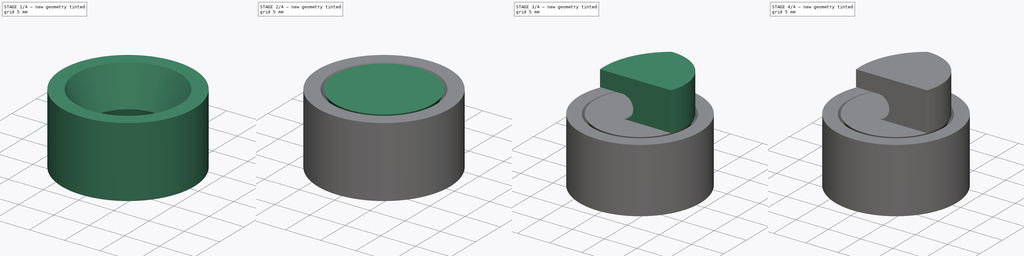
[diagram: build sequence overview — one tinted view per stage of 4, left to right]
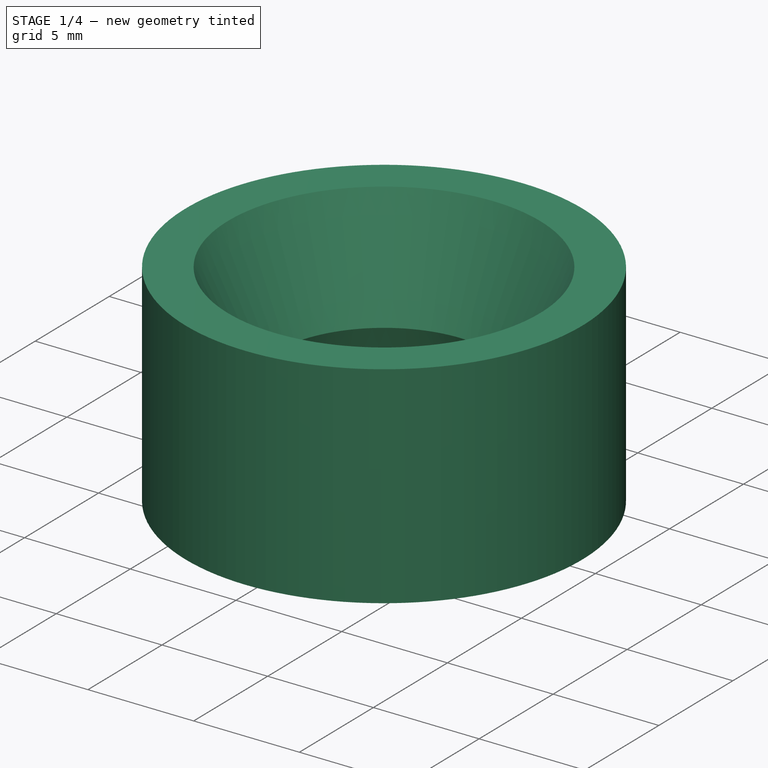
[diagram: stage 1 of 4 — iso view after this stage's code; geometry added in this stage tinted green]
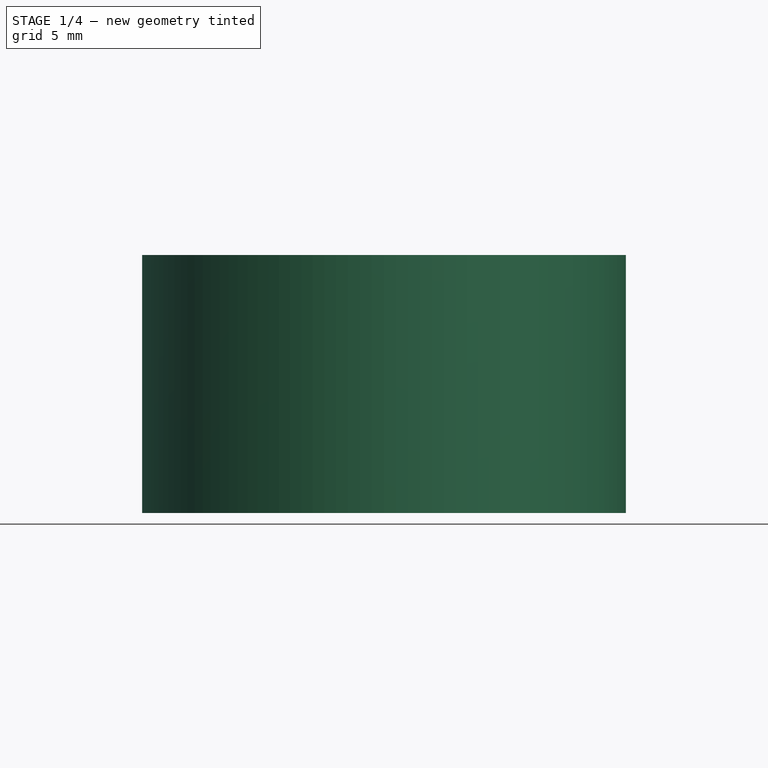
[diagram: stage 1 of 4 — front view after this stage's code; geometry added in this stage tinted green]
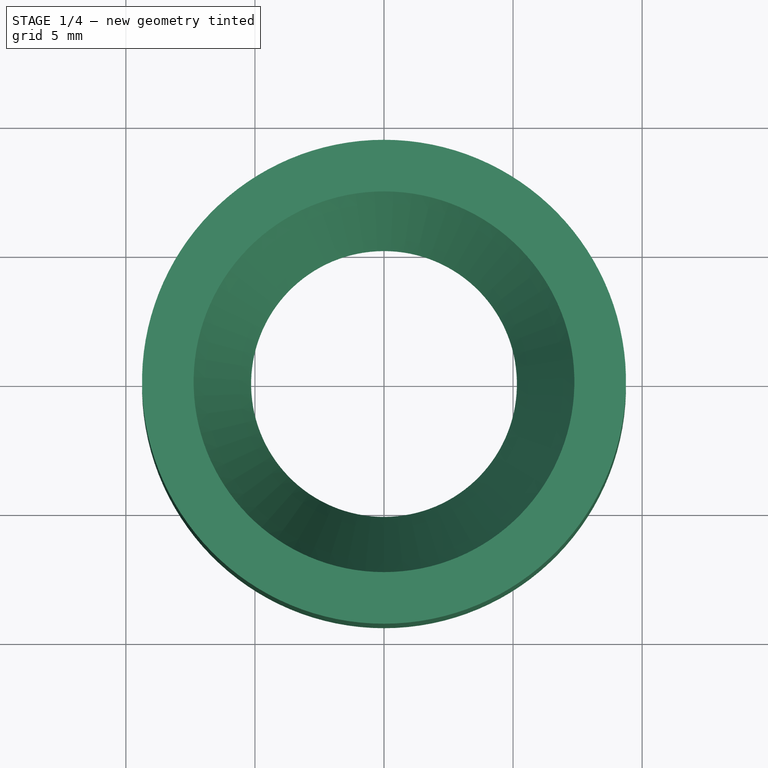
[diagram: stage 1 of 4 — top view after this stage's code; geometry added in this stage tinted green]
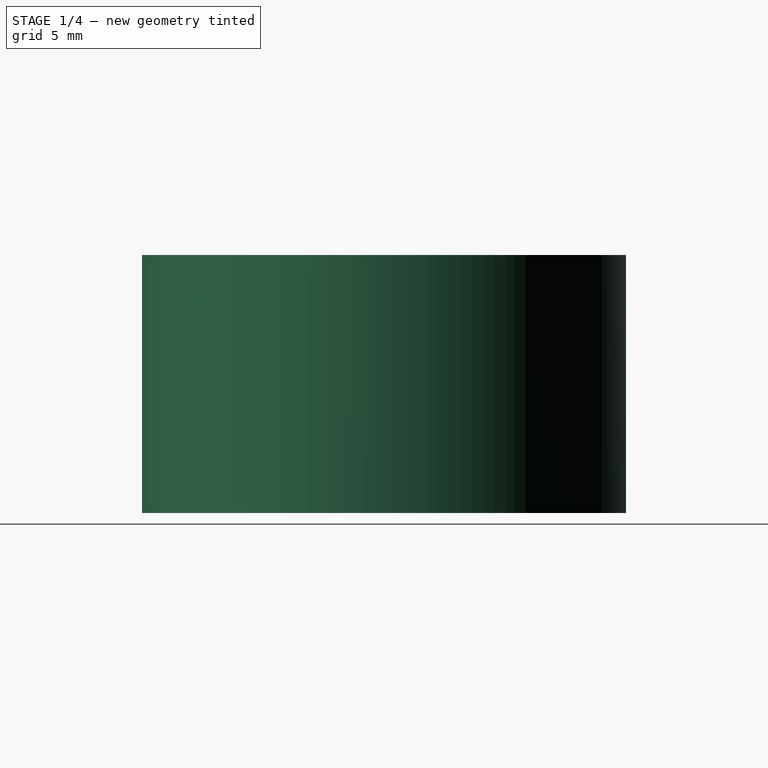
[diagram: stage 1 of 4 — right view after this stage's code; geometry added in this stage tinted green]
FCSTD DOCUMENT  (FreeCAD 1.0R39319 (Git))
Label: rotating_latch
License: All rights reserved
LicenseURL: https://en.wikipedia.org/wiki/All_rights_reserved
objects: Sketcher::SketchObject×7, PartDesign::Pocket×4, PartDesign::Revolution×2, PartDesign::Mirrored×2, PartDesign::Body×2, PartDesign::Pad×1
note: 41 computed .brp shape members not serialized (recipe doc carries the construction recipe); baked Part::Feature solids carry a one-line shape summary decoded from their .brp

FEATURE [PartDesign::Body] Body
  AllowCompound = false
  Group = -> [Sketch,Revolution,Mirrored,Sketch001,Pad,Sketch002,Pocket,Sketch003,Pocket001,Sketch004,Pocket002,Sketch005,Pocket003]
  Origin = -> Origin
  Tip = -> Pocket003
FEATURE [Sketcher::SketchObject] Sketch006
  ArcFitTolerance = 1e-06
  AttachmentSupport = -> [YZ_Plane001]
  FullyConstrained = false
  MakeInternals = false
  MapMode = 5
  Placement = pos=(0,0,0) rot=(0.57735,0.57735,0.57735;2.0944rad)
  sketch-geometry (6):
    g0: LineSegment [constr] StartX=0 StartY=0 StartZ=0 EndX=-14.014 EndY=0 EndZ=0
    g1: LineSegment StartX=-5.15 StartY=0 StartZ=0 EndX=-7.37614 EndY=5 EndZ=0
    g2: LineSegment [constr] StartX=0 StartY=0 StartZ=0 EndX=-5.15 EndY=0 EndZ=0
    g3: LineSegment StartX=-7.37614 StartY=5 StartZ=0 EndX=-9.37614 EndY=5 EndZ=0
    g4: LineSegment StartX=-9.37614 StartY=5 StartZ=0 EndX=-9.37614 EndY=0 EndZ=0
    g5: LineSegment StartX=-9.37614 StartY=0 StartZ=0 EndX=-5.15 EndY=0 EndZ=0
  constraints (16):
    c: Coincident(g0,g-1)
    c: Horizontal(g0)
    c: Angle(g-1,g1) = 1.98968
    c: PointOnObject(g1,g0)
    c: Coincident(g2,g0)
    c: Coincident(g2,g1)
    c: DistanceX(g1,g0) = 5.15
    c: DistanceY(g1,g1) = 5
    c: Horizontal(g3)
    c: Coincident(g3,g1)
    c: DistanceX(g3,g3) = 2
    c: Coincident(g4,g3)
    c: Vertical(g4)
    c: PointOnObject(g4,g0)
    c: Coincident(g5,g4)
    c: Coincident(g5,g1)
FEATURE [PartDesign::Revolution] Revolution001
  Angle = 360
  Angle2 = 60
  Axis = (0,0,1)
  Base = (0,0,0)
  Placement = pos=(0,0,0) rot=(1,1,1;2.0944rad)
  Profile = -> Sketch006
  ReferenceAxis = -> Sketch006 [V_Axis]
  Refine = true
  Suppressed = false
  Type = 0
FEATURE [PartDesign::Mirrored] Mirrored001
  BaseFeature = -> Revolution001
  MirrorPlane = -> XY_Plane001
  Originals = -> [Revolution001]
  Placement = pos=(0,0,0) rot=(1,1,1;2.0944rad)
  Refine = true
  Suppressed = false
  TransformMode = 0
FEATURE [PartDesign::Body] Body001
  AllowCompound = false
  Group = -> [Sketch006,Revolution001,Mirrored001]
  Origin = -> Origin001
  Tip = -> Mirrored001
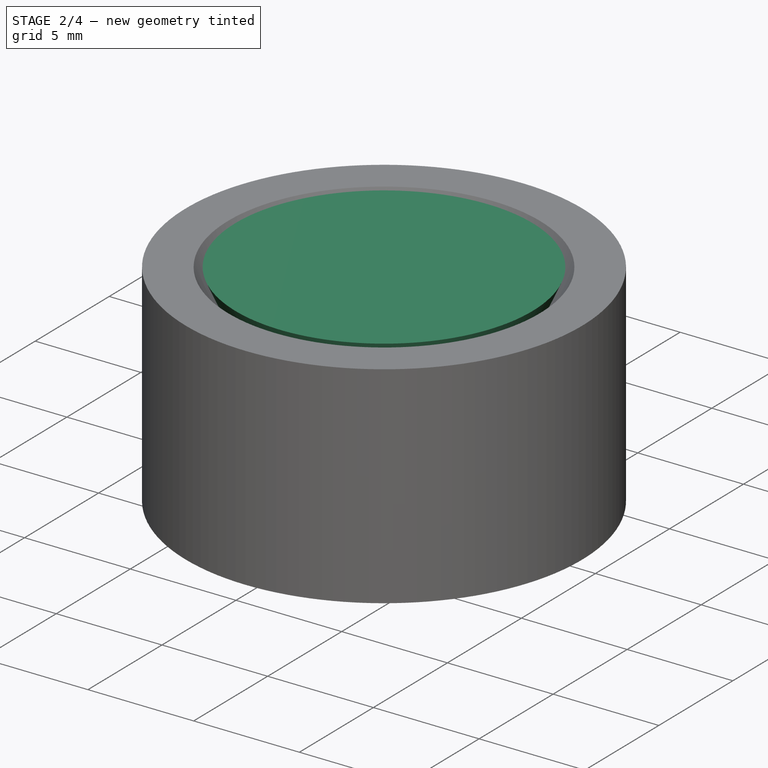
[diagram: stage 2 of 4 — iso view after this stage's code; geometry added in this stage tinted green]
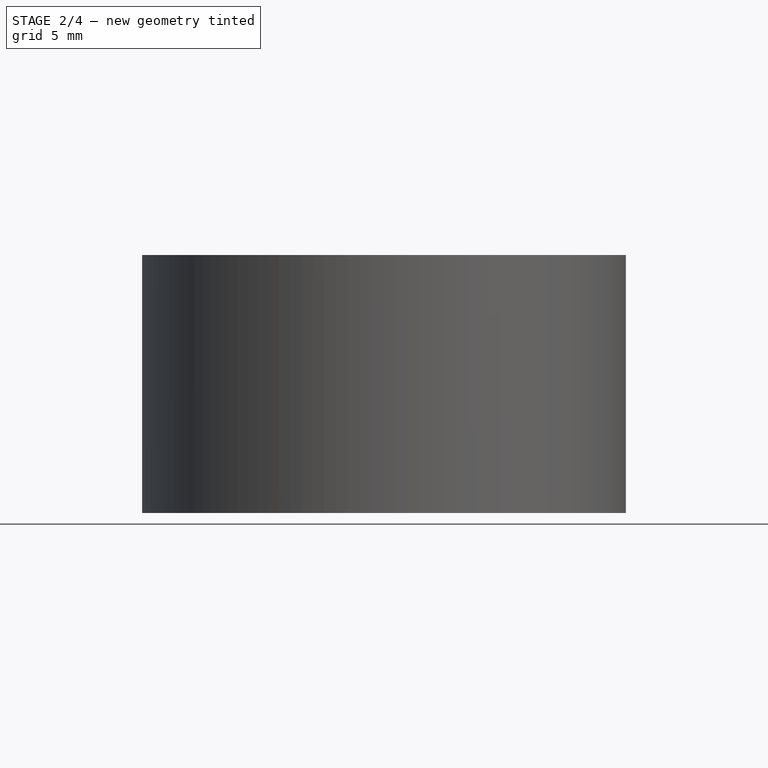
[diagram: stage 2 of 4 — front view after this stage's code; geometry added in this stage tinted green]
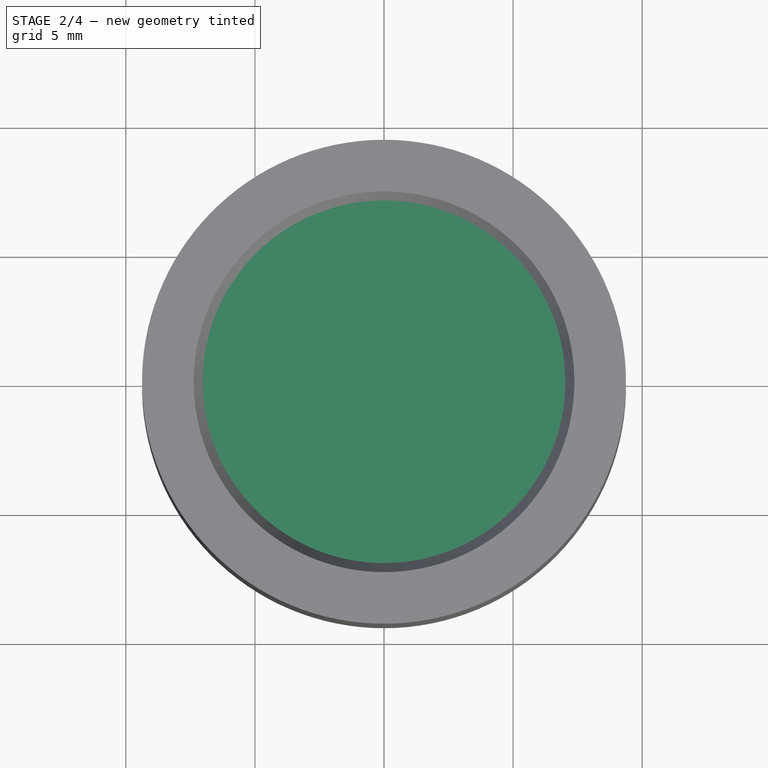
[diagram: stage 2 of 4 — top view after this stage's code; geometry added in this stage tinted green]
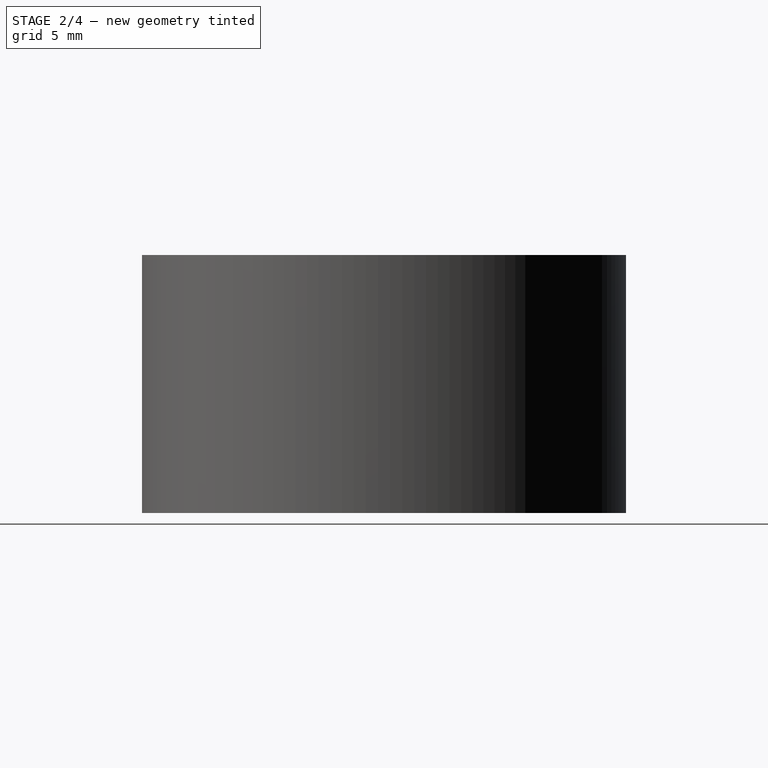
[diagram: stage 2 of 4 — right view after this stage's code; geometry added in this stage tinted green]
FEATURE [Sketcher::SketchObject] Sketch
  ArcFitTolerance = 1e-06
  AttachmentSupport = -> [XZ_Plane]
  FullyConstrained = false
  MakeInternals = false
  MapMode = 5
  Placement = pos=(0,0,0) rot=(1,0,0;1.5708rad)
  sketch-geometry (4):
    g0: LineSegment StartX=0 StartY=0 StartZ=0 EndX=-4.8 EndY=0 EndZ=0
    g1: LineSegment StartX=-4.8 StartY=0 StartZ=0 EndX=-7.02614 EndY=5 EndZ=0
    g2: LineSegment StartX=0 StartY=0 StartZ=0 EndX=0 EndY=5 EndZ=0
    g3: LineSegment StartX=-7.02614 StartY=5 StartZ=0 EndX=0 EndY=5 EndZ=0
  constraints (10):
    c: Distance(g0) = 4.8
    c: Coincident(g0,g-1)
    c: PointOnObject(g0,g-1)
    c: Angle(g-1,g1) = 1.98968
    c: Coincident(g1,g0)
    c: DistanceY(g0,g1) = 5
    c: Coincident(g2,g0)
    c: Horizontal(g3)
    c: Coincident(g3,g1)
    c: Coincident(g2,g3)
FEATURE [PartDesign::Revolution] Revolution
  Angle = 360
  Angle2 = 60
  Axis = (0,2e-16,1)
  Base = (0,0,0)
  Placement = pos=(0,0,0) rot=(1,0,0;1.5708rad)
  Profile = -> Sketch
  ReferenceAxis = -> Sketch [V_Axis]
  Refine = true
  Suppressed = false
  Type = 0
FEATURE [PartDesign::Mirrored] Mirrored
  BaseFeature = -> Revolution
  MirrorPlane = -> Sketch [H_Axis]
  Originals = -> [Revolution]
  Placement = pos=(0,0,0) rot=(1,0,0;1.5708rad)
  Refine = true
  Suppressed = false
  TransformMode = 1
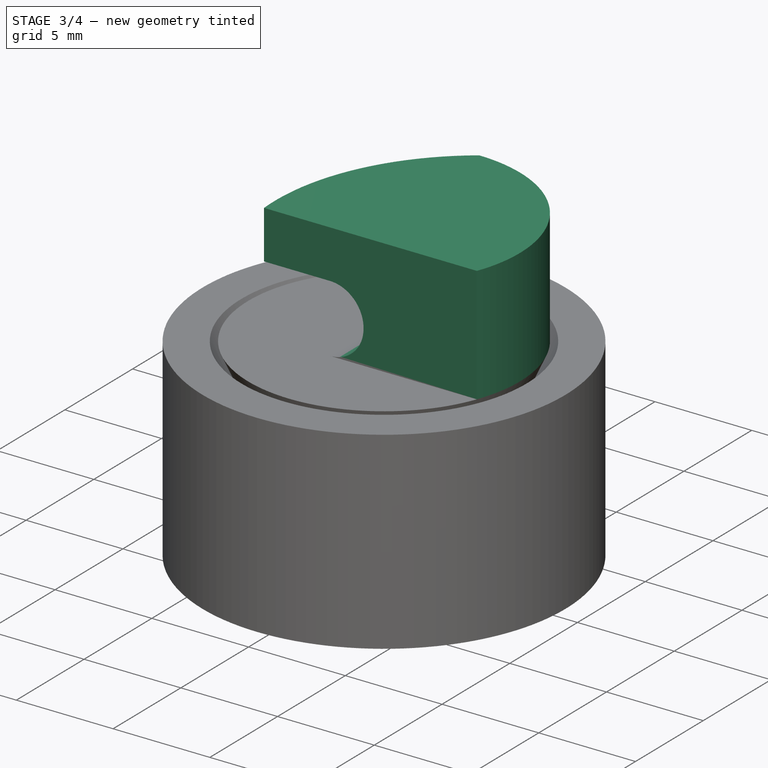
[diagram: stage 3 of 4 — iso view after this stage's code; geometry added in this stage tinted green]
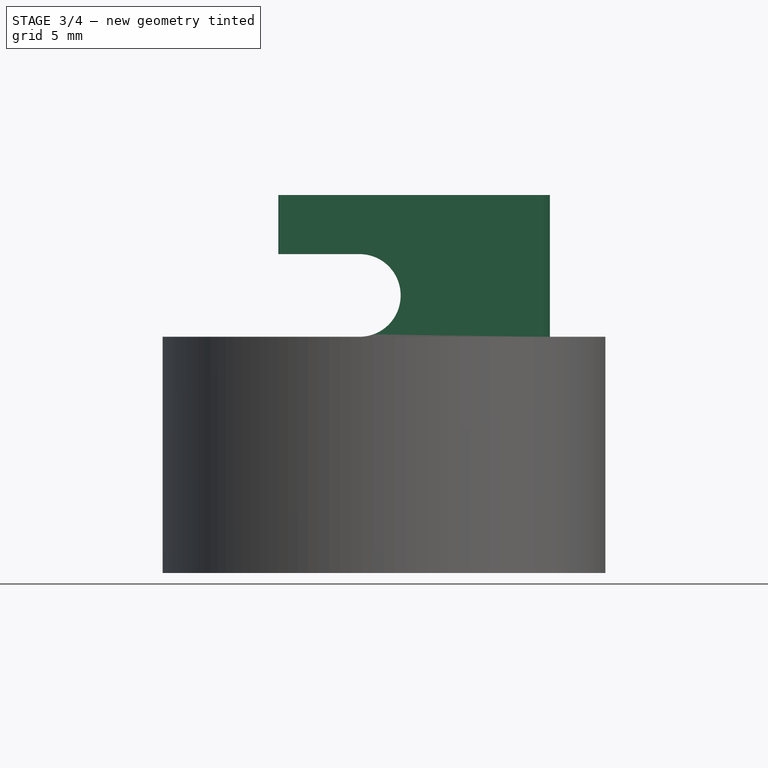
[diagram: stage 3 of 4 — front view after this stage's code; geometry added in this stage tinted green]
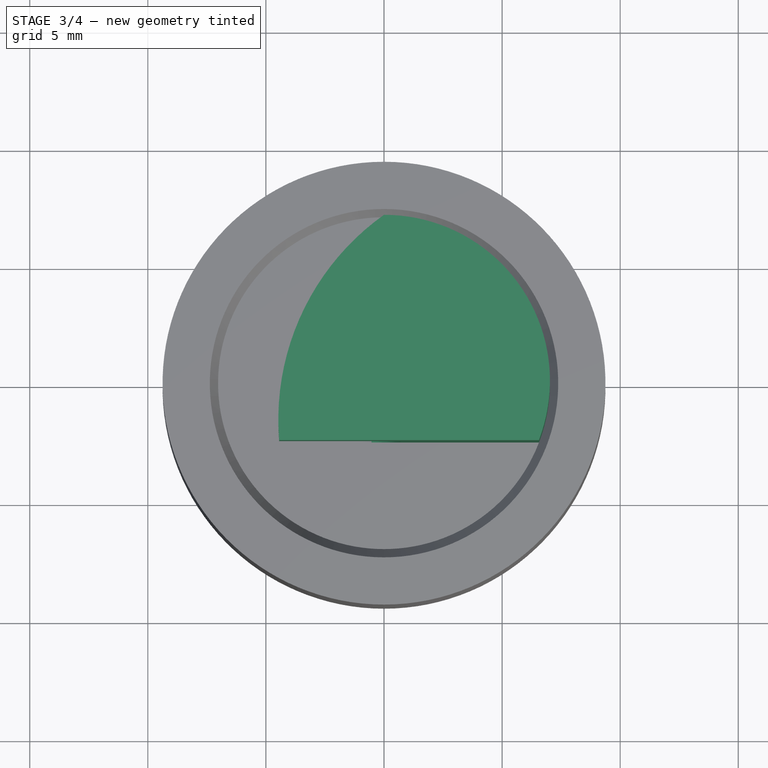
[diagram: stage 3 of 4 — top view after this stage's code; geometry added in this stage tinted green]
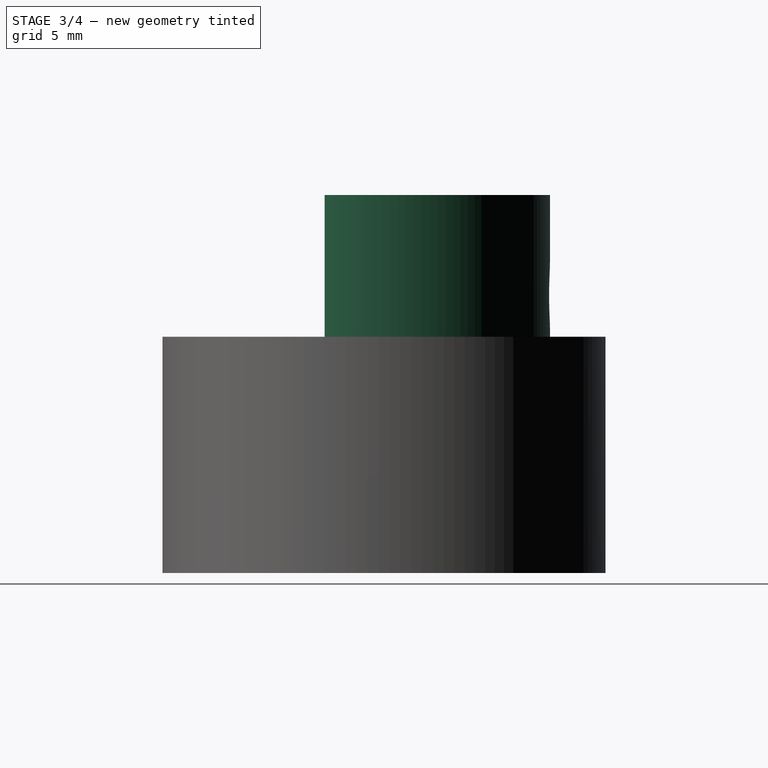
[diagram: stage 3 of 4 — right view after this stage's code; geometry added in this stage tinted green]
FEATURE [Sketcher::SketchObject] Sketch001
  ArcFitTolerance = 1e-06
  AttachmentSupport = -> [Mirrored]
  ExternalGeometry = -> [Mirrored]
  FullyConstrained = false
  MakeInternals = false
  MapMode = 5
  Placement = pos=(0,1.1e-15,5) rot=(0,0,1;3.14159rad)
  sketch-geometry (3):
    g0: ArcOfCircle CenterX=0 CenterY=0 CenterZ=0 NormalX=0 NormalY=0 NormalZ=1 AngleXU=0 Radius=7.02614 StartAngle=2.77562 EndAngle=4.71239
    g1: ArcOfCircle CenterX=-6.16688 CenterY=1.64626 CenterZ=0 NormalX=0 NormalY=0 NormalZ=1 AngleXU=0 Radius=10.6415 StartAngle=5.33052 EndAngle=6.36485
    g2: LineSegment StartX=4.43915 StartY=2.51434 StartZ=0 EndX=-6.56085 EndY=2.51434 EndZ=0
  constraints (7):
    c: Coincident(g0,g-1)
    c: Equal(g0,g-3)
    c: Horizontal(g2)
    c: Coincident(g2,g1)
    c: Coincident(g0,g1)
    c: Coincident(g0,g2)
    c: DistanceX(g2,g2) = 11
FEATURE [PartDesign::Pad] Pad
  BaseFeature = -> Mirrored
  Direction = (0,0,1)
  Length = 6
  Length2 = 10
  Placement = pos=(0,0,0) rot=(1,0,0;1.5708rad)
  Profile = -> Sketch001
  ReferenceAxis = -> Sketch001 [N_Axis]
  Refine = true
  Suppressed = false
  Type = 0
FEATURE [Sketcher::SketchObject] Sketch002
  ArcFitTolerance = 1e-06
  AttachmentSupport = -> [Pad]
  ExternalGeometry = -> [Pad]
  FullyConstrained = false
  MakeInternals = false
  MapMode = 5
  Placement = pos=(0,-2.51434,0) rot=(1,0,0;1.5708rad)
  sketch-geometry (10):
    g0: GeomPoint X=0 Y=5 Z=0
    g1: GeomPoint X=0 Y=11 Z=0
    g2: LineSegment StartX=-4.79628 StartY=8.5 StartZ=0 EndX=-4.79628 EndY=5 EndZ=0
    g3: LineSegment StartX=-4.79628 StartY=5 StartZ=0 EndX=-1.03628 EndY=5 EndZ=0
    g4: LineSegment StartX=0.703722 StartY=6.74 StartZ=0 EndX=0.703722 EndY=6.76 EndZ=0
    g5: LineSegment StartX=-1.03628 StartY=8.5 StartZ=0 EndX=-4.79628 EndY=8.5 EndZ=0
    g6: ArcOfCircle CenterX=-1.03628 CenterY=6.76 CenterZ=0 NormalX=0 NormalY=0 NormalZ=1 AngleXU=0 Radius=1.74 StartAngle=3e-16 EndAngle=1.5708
    g7: GeomPoint [constr] X=0.703722 Y=8.5 Z=0
    g8: ArcOfCircle CenterX=-1.03628 CenterY=6.74 CenterZ=0 NormalX=0 NormalY=0 NormalZ=1 AngleXU=0 Radius=1.74 StartAngle=4.71239 EndAngle=6.28319
    g9: GeomPoint [constr] X=0.703722 Y=5 Z=0
  constraints (23):
    c: PointOnObject(g0,g-3)
    c: PointOnObject(g0,g-2)
    c: PointOnObject(g1,g-5)
    c: PointOnObject(g1,g-2)
    c: Coincident(g2,g3)
    c: Vertical(g2)
    c: Vertical(g4)
    c: Horizontal(g3)
    c: Horizontal(g5)
    c: PointOnObject(g7,g4)
    c: PointOnObject(g7,g5)
    c: Tangent(g4,g6) = -1.5708
    c: Tangent(g5,g6) = -1.5708
    c: PointOnObject(g9,g4)
    c: PointOnObject(g9,g3)
    c: Tangent(g4,g8) = -1.5708
    c: Tangent(g3,g8) = -1.5708
    c: Equal(g6,g8)
    c: Radius(g6) = 1.74
    c: DistanceY(g2,g2) = 3.5
    c: Coincident(g5,g2)
    c: PointOnObject(g3,g-3)
    c: DistanceX(g2,g4) = 5.5
FEATURE [PartDesign::Pocket] Pocket
  BaseFeature = -> Pad
  Direction = (0,1,-2e-16)
  Length = 12
  Length2 = 5
  Placement = pos=(0,0,0) rot=(1,0,0;1.5708rad)
  Profile = -> Sketch002
  ReferenceAxis = -> Sketch002 [N_Axis]
  Refine = true
  Suppressed = false
  Type = 0
FEATURE [Sketcher::SketchObject] Sketch003
  ArcFitTolerance = 1e-06
  AttachmentSupport = -> [YZ_Plane]
  ExternalGeometry = -> [Pocket]
  FullyConstrained = false
  MakeInternals = false
  MapMode = 5
  Placement = pos=(0,0,0) rot=(0.57735,0.57735,0.57735;2.0944rad)
  sketch-geometry (7):
    g0: LineSegment StartX=-2.51434 StartY=5 StartZ=0 EndX=-2.51434 EndY=8.5 EndZ=0
    g1: LineSegment StartX=-2.51434 StartY=8.5 StartZ=0 EndX=-6.91434 EndY=8.5 EndZ=0
    g2: LineSegment StartX=-7.41434 StartY=8 StartZ=0 EndX=-7.41434 EndY=5.5 EndZ=0
    g3: LineSegment StartX=-6.91434 StartY=5 StartZ=0 EndX=-2.51434 EndY=5 EndZ=0
    g4: ArcOfCircle CenterX=-6.91434 CenterY=8 CenterZ=0 NormalX=0 NormalY=0 NormalZ=1 AngleXU=0 Radius=0.5 StartAngle=1.5708 EndAngle=3.14159
    g5: ArcOfCircle CenterX=-6.91434 CenterY=5.5 CenterZ=0 NormalX=0 NormalY=0 NormalZ=1 AngleXU=0 Radius=0.5 StartAngle=3.14159 EndAngle=4.71239
    g6: GeomPoint [constr] X=-5.71087 Y=5 Z=0
  constraints (15):
    c: Coincident(g0,g1)
    c: Coincident(g3,g0)
    c: Vertical(g0)
    c: Vertical(g2)
    c: Horizontal(g1)
    c: Horizontal(g3)
    c: Tangent(g1,g4) = -1.5708
    c: Tangent(g2,g4) = -1.5708
    c: Tangent(g2,g5) = -1.5708
    c: Tangent(g3,g5) = -1.5708
    c: Equal(g4,g5)
    c: Radius(g4) = 0.5
    c: Coincident(g0,g-3)
    c: DistanceY(g0,g0) = 3.5
    c: DistanceX(g2,g0) = 4.9
FEATURE [PartDesign::Pocket] Pocket001
  BaseFeature = -> Pocket
  Direction = (-1,0,0)
  Length = 19
  Length2 = 5
  Midplane = true
  Placement = pos=(0,0,0) rot=(1,0,0;1.5708rad)
  Profile = -> Sketch003
  ReferenceAxis = -> Sketch003 [N_Axis]
  Refine = true
  Suppressed = false
  Type = 0
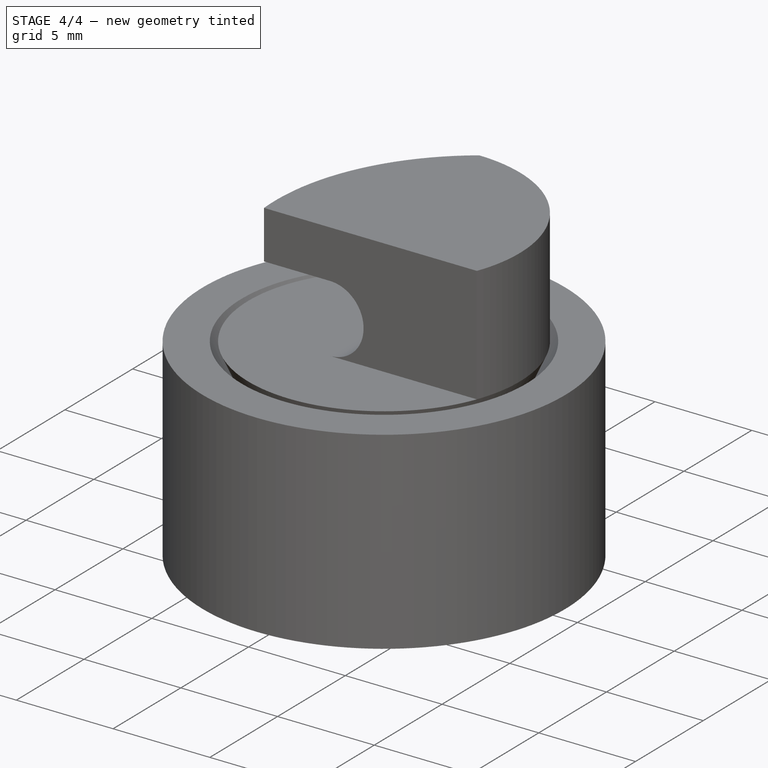
[diagram: stage 4 of 4 — iso view after this stage's code; geometry added in this stage tinted green]
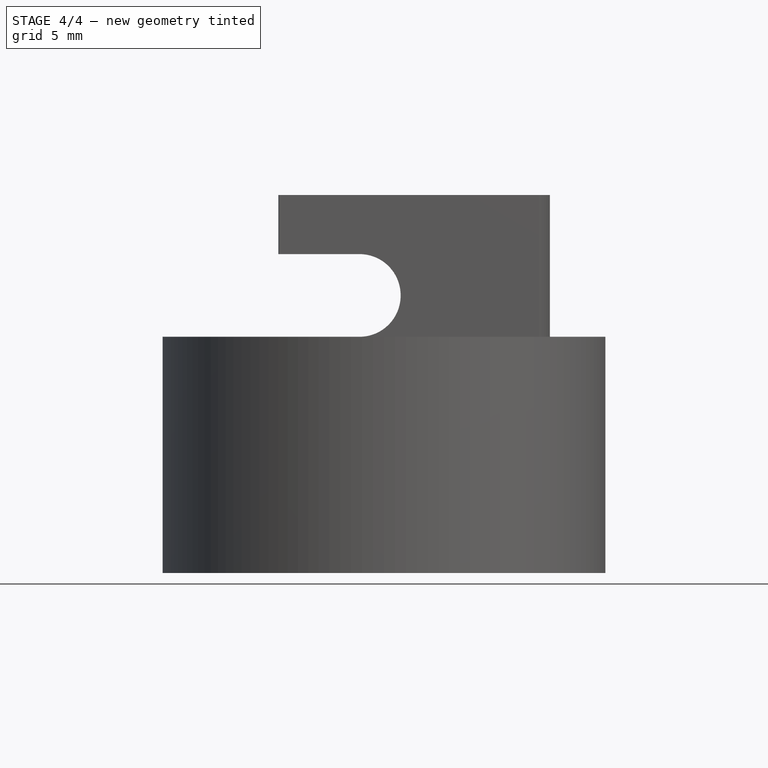
[diagram: stage 4 of 4 — front view after this stage's code; geometry added in this stage tinted green]
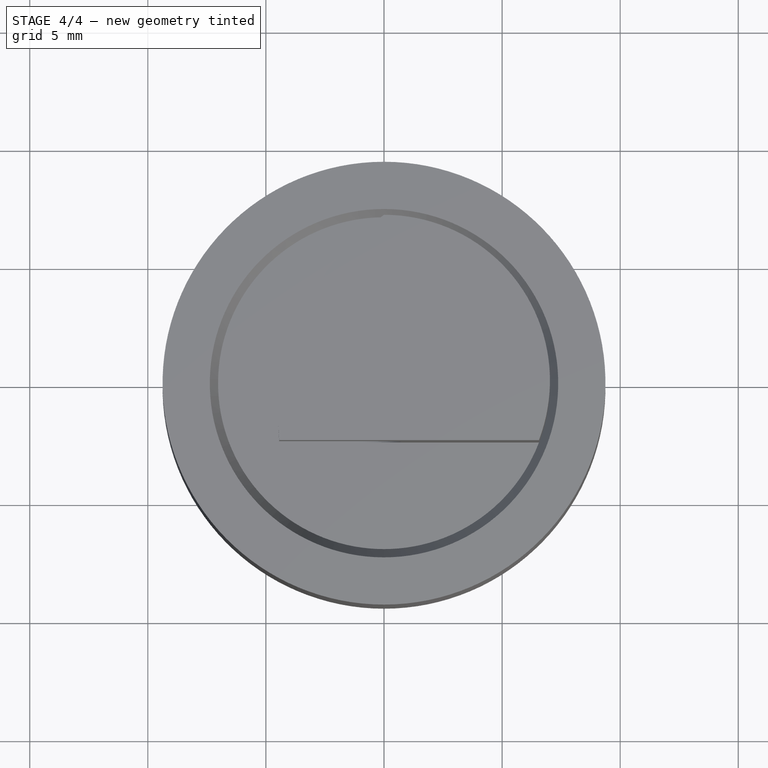
[diagram: stage 4 of 4 — top view after this stage's code; geometry added in this stage tinted green]
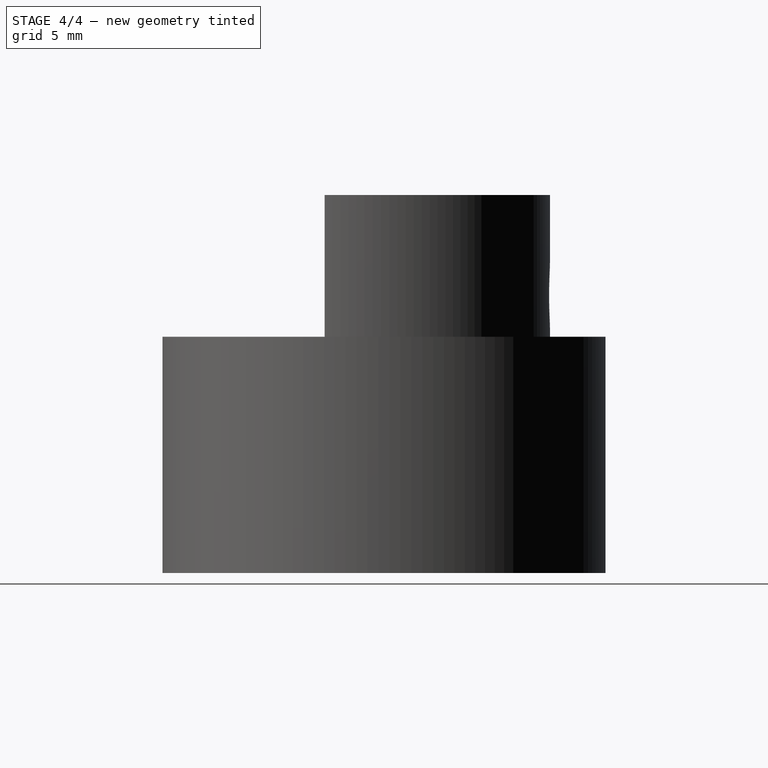
[diagram: stage 4 of 4 — right view after this stage's code; geometry added in this stage tinted green]
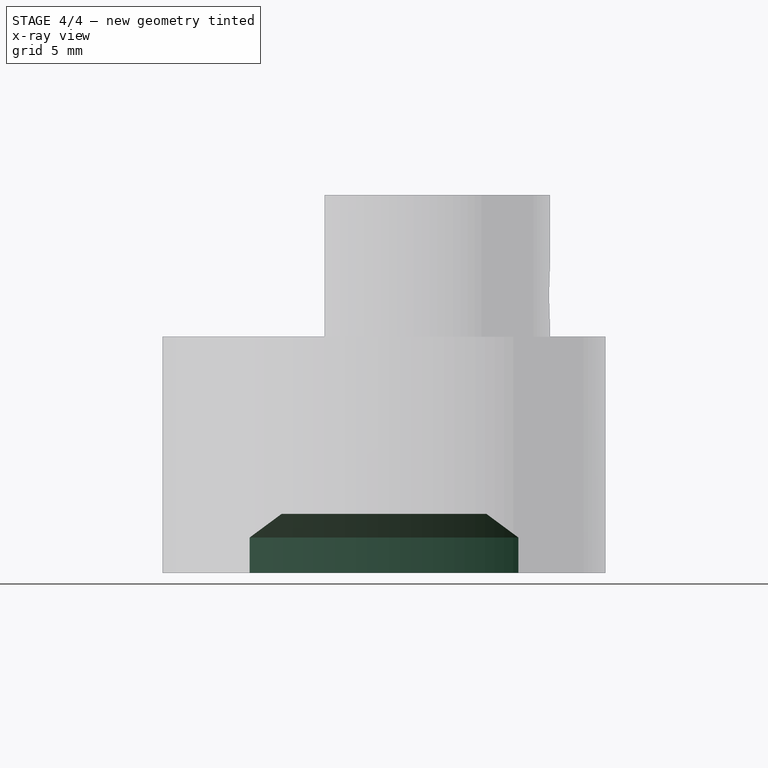
[diagram: stage 4 of 4 — x-ray composite at the right view; earlier geometry ghosted, this stage's added geometry solid]
FEATURE [Sketcher::SketchObject] Sketch004
  ArcFitTolerance = 1e-06
  AttachmentSupport = -> [Pocket001]
  FullyConstrained = true
  MakeInternals = false
  MapMode = 5
  Placement = pos=(0,-1.1e-15,-5) rot=(1,0,0;3.14159rad)
  sketch-geometry (7):
    g0: ArcOfCircle CenterX=0 CenterY=0 CenterZ=0 NormalX=0 NormalY=0 NormalZ=1 AngleXU=0 Radius=5.77614 StartAngle=1.7448 EndAngle=4.53839
    g1: GeomPoint [constr] X=5.77614 Y=0 Z=0
    g2: GeomPoint [constr] X=7.02614 Y=0 Z=0
    g3: LineSegment StartX=-1 StartY=5.68892 StartZ=0 EndX=-1 EndY=-5.68892 EndZ=0
    g4: GeomPoint X=-1 Y=0 Z=0
    g5: LineSegment StartX=1 StartY=5.68892 StartZ=0 EndX=1 EndY=-5.68892 EndZ=0
    g6: ArcOfCircle CenterX=0 CenterY=0 CenterZ=0 NormalX=0 NormalY=0 NormalZ=1 AngleXU=0 Radius=5.77614 StartAngle=4.88639 EndAngle=7.67998
  constraints (19):
    c: Coincident(g0,g-1)
    c: PointOnObject(g1,g6)
    c: PointOnObject(g1,g-1)
    c: PointOnObject(g2,g-3)
    c: PointOnObject(g2,g-1)
    c: DistanceX(g1,g2) = 1.25
    c: Vertical(g3)
    c: PointOnObject(g4,g3)
    c: PointOnObject(g4,g-1)
    c: DistanceX(g4,g0) = 1
    c: Vertical(g5)
    c: PointOnObject(g5,g6)
    c: Equal(g3,g5)
    c: Coincident(g6,g5)
    c: Coincident(g0,g3)
    c: Equal(g0,g6)
    c: Coincident(g0,g3)
    c: PointOnObject(g6,g5)
    c: Coincident(g0,g6)
FEATURE [PartDesign::Pocket] Pocket002
  BaseFeature = -> Pocket001
  Direction = (0,0,1)
  Length = 1.5
  Length2 = 5
  Placement = pos=(0,0,0) rot=(1,0,0;1.5708rad)
  Profile = -> Sketch004
  ReferenceAxis = -> Sketch004 [N_Axis]
  Refine = true
  Suppressed = false
  Type = 0
FEATURE [Sketcher::SketchObject] Sketch005
  ArcFitTolerance = 1e-06
  AttachmentSupport = -> [Pocket002]
  FullyConstrained = true
  MakeInternals = false
  MapMode = 5
  Placement = pos=(0,0,-3.5) rot=(1,0,0;3.14159rad)
  expr: Constraints[5] = Sketch004.Constraints[5]
  expr: Constraints[9] = Sketch004.Constraints[9]
  sketch-geometry (7):
    g0: ArcOfCircle CenterX=0 CenterY=0 CenterZ=0 NormalX=0 NormalY=0 NormalZ=1 AngleXU=0 Radius=5.77614 StartAngle=1.7448 EndAngle=4.53839
    g1: GeomPoint [constr] X=5.77614 Y=0 Z=0
    g2: GeomPoint [constr] X=7.02614 Y=0 Z=0
    g3: LineSegment StartX=-1 StartY=5.68892 StartZ=0 EndX=-1 EndY=-5.68892 EndZ=0
    g4: GeomPoint X=-1 Y=0 Z=0
    g5: LineSegment StartX=1 StartY=5.68892 StartZ=0 EndX=1 EndY=-5.68892 EndZ=0
    g6: ArcOfCircle CenterX=0 CenterY=0 CenterZ=0 NormalX=0 NormalY=0 NormalZ=1 AngleXU=0 Radius=5.77614 StartAngle=4.88639 EndAngle=7.67998
  constraints (19):
    c: Coincident(g0,g-1)
    c: PointOnObject(g1,g6)
    c: PointOnObject(g1,g-1)
    c: PointOnObject(g2,g-3)
    c: PointOnObject(g2,g-1)
    c: DistanceX(g1,g2) = 1.25
    c: Vertical(g3)
    c: PointOnObject(g4,g3)
    c: PointOnObject(g4,g-1)
    c: DistanceX(g4,g0) = 1
    c: Vertical(g5)
    c: PointOnObject(g5,g6)
    c: Equal(g3,g5)
    c: Coincident(g6,g5)
    c: Coincident(g0,g3)
    c: Equal(g0,g6)
    c: Coincident(g0,g3)
    c: PointOnObject(g6,g5)
    c: Coincident(g0,g6)
FEATURE [PartDesign::Pocket] Pocket003
  BaseFeature = -> Pocket002
  Direction = (0,0,1)
  Length = 1
  Length2 = 5
  Placement = pos=(0,0,0) rot=(1,0,0;1.5708rad)
  Profile = -> Sketch005
  ReferenceAxis = -> Sketch005 [N_Axis]
  Refine = true
  Suppressed = false
  TaperAngle = -45
  Type = 0
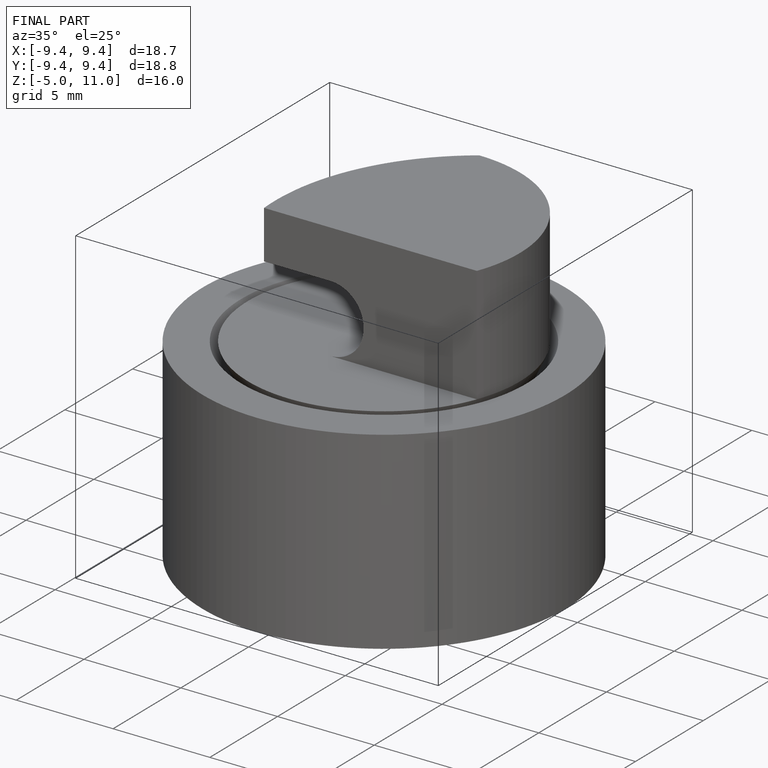
[diagram: finished part — iso view with bounding-box wireframe]
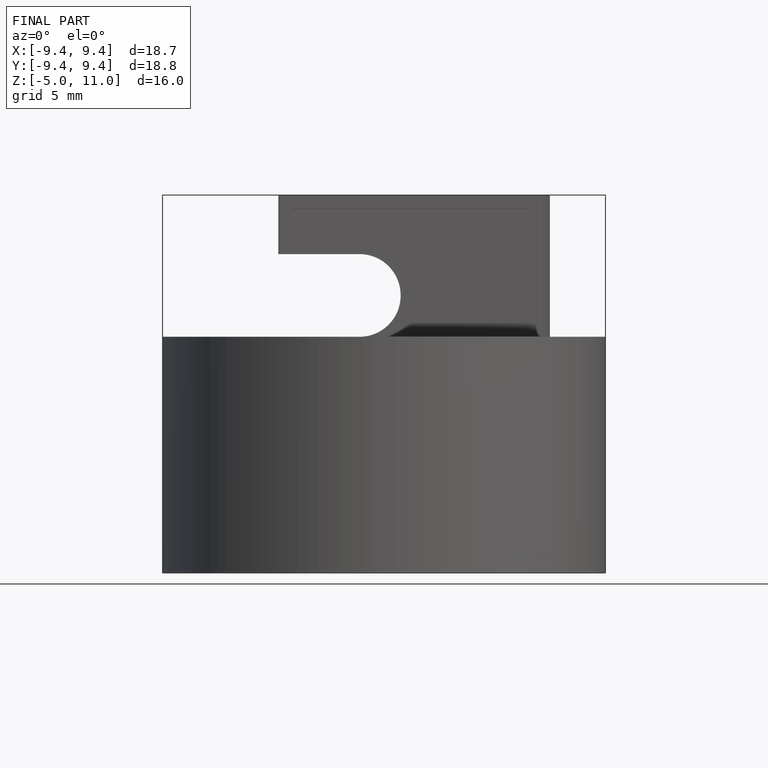
[diagram: finished part — front view with bounding-box wireframe]
